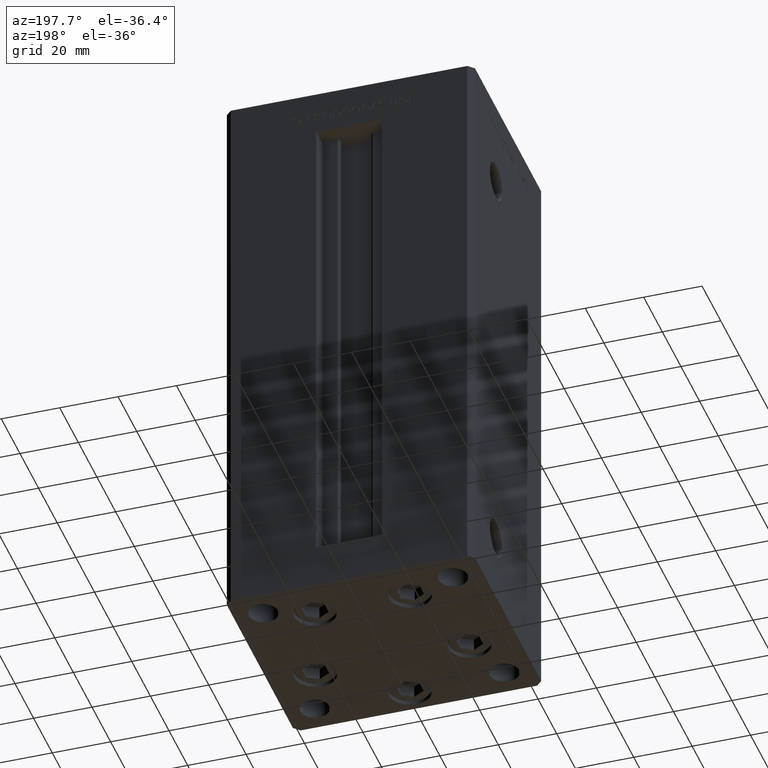
[diagram: clean part render]
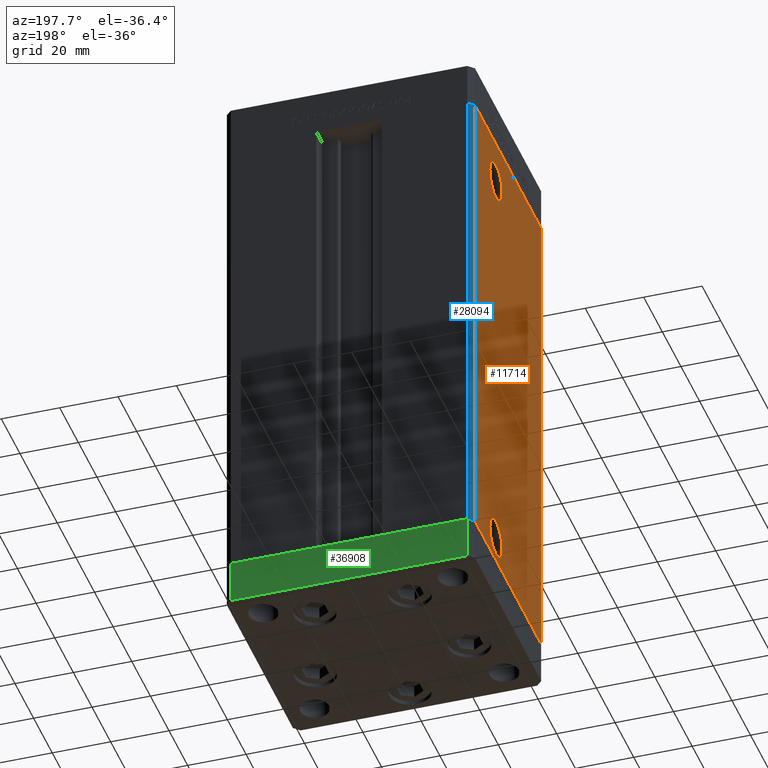
[diagram: same view with three faces highlighted in distinct colors, each labeled with its STEP entity id]
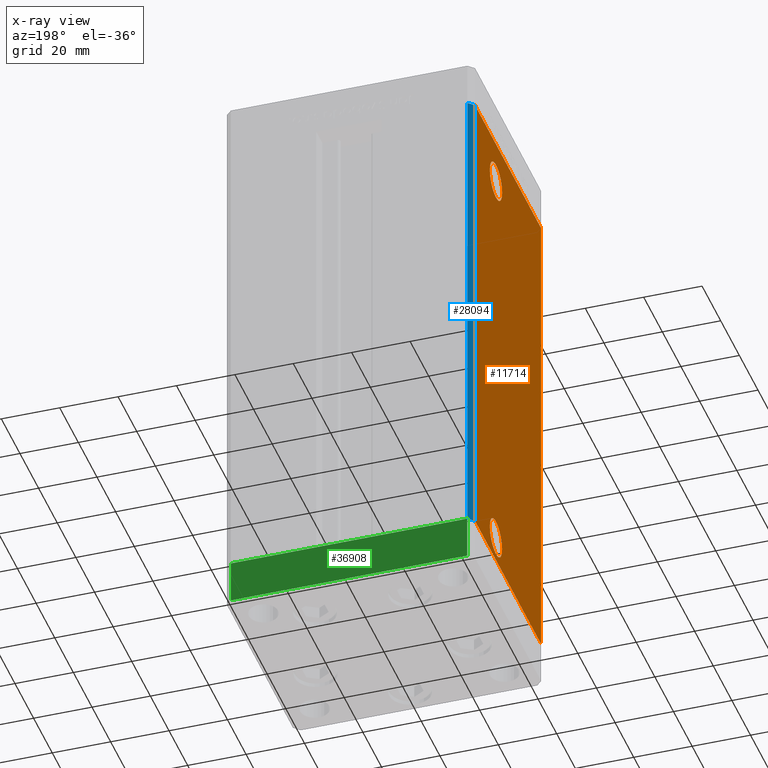
[diagram: x-ray of the same camera — body ghosted, the three highlighted faces saturated]
A machine part, auxiliary view with three faces highlighted in distinct colors.
The next image is the same camera in x-ray (body ghosted, the three faces saturated) — at least one of them is partly hidden behind the body in this view.
Their STEP definitions:

[orange] entity #11714 — the highlighted planar face has unit normal (1, 0, 0).
#1262 = CARTESIAN_POINT ( 'NONE',  ( -42.50000000000000711, 35.50000000000001421, 168.5000000000000000 ) ) ;
#1520 = CARTESIAN_POINT ( 'NONE',  ( -42.49999999999999289, 13.00000000000000000, 153.5000000000000284 ) ) ;
#2626 = ORIENTED_EDGE ( 'NONE', *, *, #6531, .F. ) ;
#3436 = CARTESIAN_POINT ( 'NONE',  ( -42.49999999999999289, 13.00000000000000000, 9.000000000000000000 ) ) ;
#3660 = VERTEX_POINT ( 'NONE', #8243 ) ;
#3820 = CARTESIAN_POINT ( 'NONE',  ( -42.50000000000000711, 35.50000000000001421, 168.5000000000000000 ) ) ;
#6531 = EDGE_CURVE ( 'NONE', #28517, #3660, #35390, .T. ) ;
#7419 = LINE ( 'NONE', #28234, #41096 ) ;
#7801 = VECTOR ( 'NONE', #38517, 1000.000000000000000 ) ;
#8243 = CARTESIAN_POINT ( 'NONE',  ( -42.49999999999999289, 19.58000000000000540, 9.000000000000000000 ) ) ;
#9853 = CARTESIAN_POINT ( 'NONE',  ( -42.49999999999999289, 19.58000000000001251, 153.5000000000000284 ) ) ;
#10021 = EDGE_LOOP ( 'NONE', ( #48513, #31859, #20258, #34384 ) ) ;
#11714 = ADVANCED_FACE ( 'NONE', ( #37368, #16799, #36582 ), #12842, .F. ) ;
#12741 = EDGE_LOOP ( 'NONE', ( #33614, #50224 ) ) ;
#12842 = PLANE ( 'NONE',  #34703 ) ;
#13340 = EDGE_CURVE ( 'NONE', #50776, #19986, #26025, .T. ) ;
#13658 = AXIS2_PLACEMENT_3D ( 'NONE', #1520, #41593, #33672 ) ;
#14179 = CARTESIAN_POINT ( 'NONE',  ( -42.49999999999999289, 13.00000000000000000, 153.5000000000000284 ) ) ;
#14529 = VECTOR ( 'NONE', #42394, 1000.000000000000000 ) ;
#14703 = DIRECTION ( 'NONE',  ( 0.000000000000000000, -1.000000000000000000, 0.000000000000000000 ) ) ;
#15812 = DIRECTION ( 'NONE',  ( 0.000000000000000000, -1.000000000000000000, 0.000000000000000000 ) ) ;
#16799 = FACE_BOUND ( 'NONE', #12741, .T. ) ;
#17331 = DIRECTION ( 'NONE',  ( 1.000000000000000000, 2.931927001650941360E-16, -0.000000000000000000 ) ) ;
#17372 = VERTEX_POINT ( 'NONE', #46942 ) ;
#17434 = CARTESIAN_POINT ( 'NONE',  ( -42.49999999999998579, -35.50000000000000711, 168.5000000000000000 ) ) ;
#17952 = VECTOR ( 'NONE', #19902, 1000.000000000000000 ) ;
#19567 = CIRCLE ( 'NONE', #13658, 6.580000000000015170 ) ;
#19897 = ORIENTED_EDGE ( 'NONE', *, *, #20869, .F. ) ;
#19902 = DIRECTION ( 'NONE',  ( -0.000000000000000000, -0.000000000000000000, -1.000000000000000000 ) ) ;
#19986 = VERTEX_POINT ( 'NONE', #48143 ) ;
#20215 = CARTESIAN_POINT ( 'NONE',  ( -42.49999999999999289, 13.00000000000000000, 9.000000000000000000 ) ) ;
#20258 = ORIENTED_EDGE ( 'NONE', *, *, #34941, .F. ) ;
#20749 = DIRECTION ( 'NONE',  ( -1.000000000000000000, -2.275047181608927644E-16, 0.000000000000000000 ) ) ;
#20869 = EDGE_CURVE ( 'NONE', #3660, #28517, #25655, .T. ) ;
#23457 = DIRECTION ( 'NONE',  ( -1.000000000000000000, -2.275047181608927644E-16, 0.000000000000000000 ) ) ;
#23496 = DIRECTION ( 'NONE',  ( 2.931927001650941360E-16, -1.000000000000000000, 0.000000000000000000 ) ) ;
#23951 = AXIS2_PLACEMENT_3D ( 'NONE', #3436, #23457, #15812 ) ;
#24218 = VERTEX_POINT ( 'NONE', #3820 ) ;
#25013 = CARTESIAN_POINT ( 'NONE',  ( -42.49999999999999289, 6.419999999999983942, 153.5000000000000284 ) ) ;
#25655 = CIRCLE ( 'NONE', #23951, 6.580000000000003624 ) ;
#26025 = LINE ( 'NONE', #30253, #14529 ) ;
#28234 = CARTESIAN_POINT ( 'NONE',  ( -42.50000000000000711, 35.50000000000001421, 168.5000000000000000 ) ) ;
#28517 = VERTEX_POINT ( 'NONE', #38082 ) ;
#29196 = DIRECTION ( 'NONE',  ( -2.931927001650941360E-16, 1.000000000000000000, 0.000000000000000000 ) ) ;
#30253 = CARTESIAN_POINT ( 'NONE',  ( -42.50000000000000711, 35.50000000000001421, 0.000000000000000000 ) ) ;
#31614 = CARTESIAN_POINT ( 'NONE',  ( -42.50000000000000711, 35.50000000000001421, 0.000000000000000000 ) ) ;
#31859 = ORIENTED_EDGE ( 'NONE', *, *, #47849, .F. ) ;
#33614 = ORIENTED_EDGE ( 'NONE', *, *, #46832, .F. ) ;
#33672 = DIRECTION ( 'NONE',  ( 0.000000000000000000, -1.000000000000000000, 0.000000000000000000 ) ) ;
#34299 = LINE ( 'NONE', #17434, #7801 ) ;
#34384 = ORIENTED_EDGE ( 'NONE', *, *, #45492, .T. ) ;
#34703 = AXIS2_PLACEMENT_3D ( 'NONE', #1262, #17331, #29196 ) ;
#34941 = EDGE_CURVE ( 'NONE', #24218, #17372, #7419, .T. ) ;
#35298 = EDGE_CURVE ( 'NONE', #48420, #48002, #38569, .T. ) ;
#35390 = CIRCLE ( 'NONE', #45478, 6.580000000000003624 ) ;
#36582 = FACE_OUTER_BOUND ( 'NONE', #10021, .T. ) ;
#36915 = AXIS2_PLACEMENT_3D ( 'NONE', #14179, #46368, #14703 ) ;
#37368 = FACE_BOUND ( 'NONE', #42462, .T. ) ;
#38082 = CARTESIAN_POINT ( 'NONE',  ( -42.49999999999999289, 6.419999999999996376, 9.000000000000000000 ) ) ;
#38517 = DIRECTION ( 'NONE',  ( -0.000000000000000000, -0.000000000000000000, -1.000000000000000000 ) ) ;
#38569 = CIRCLE ( 'NONE', #36915, 6.580000000000015170 ) ;
#39946 = LINE ( 'NONE', #47876, #17952 ) ;
#41096 = VECTOR ( 'NONE', #23496, 1000.000000000000000 ) ;
#41593 = DIRECTION ( 'NONE',  ( -1.000000000000000000, -2.275047181608927644E-16, 0.000000000000000000 ) ) ;
#42394 = DIRECTION ( 'NONE',  ( 2.931927001650941360E-16, -1.000000000000000000, 0.000000000000000000 ) ) ;
#42462 = EDGE_LOOP ( 'NONE', ( #2626, #19897 ) ) ;
#45478 = AXIS2_PLACEMENT_3D ( 'NONE', #20215, #20749, #49247 ) ;
#45492 = EDGE_CURVE ( 'NONE', #24218, #50776, #39946, .T. ) ;
#46368 = DIRECTION ( 'NONE',  ( -1.000000000000000000, -2.275047181608927644E-16, 0.000000000000000000 ) ) ;
#46832 = EDGE_CURVE ( 'NONE', #48002, #48420, #19567, .T. ) ;
#46942 = CARTESIAN_POINT ( 'NONE',  ( -42.49999999999998579, -35.50000000000000711, 168.5000000000000000 ) ) ;
#47849 = EDGE_CURVE ( 'NONE', #17372, #19986, #34299, .T. ) ;
#47876 = CARTESIAN_POINT ( 'NONE',  ( -42.50000000000000711, 35.50000000000001421, 168.5000000000000000 ) ) ;
#48002 = VERTEX_POINT ( 'NONE', #25013 ) ;
#48143 = CARTESIAN_POINT ( 'NONE',  ( -42.49999999999998579, -35.50000000000000711, 0.000000000000000000 ) ) ;
#48420 = VERTEX_POINT ( 'NONE', #9853 ) ;
#48513 = ORIENTED_EDGE ( 'NONE', *, *, #13340, .T. ) ;
#49247 = DIRECTION ( 'NONE',  ( 0.000000000000000000, -1.000000000000000000, 0.000000000000000000 ) ) ;
#50224 = ORIENTED_EDGE ( 'NONE', *, *, #35298, .F. ) ;
#50776 = VERTEX_POINT ( 'NONE', #31614 ) ;

[blue] entity #28094 — the highlighted planar face has unit normal (0.7071, -0.7071, 0).
#838 = EDGE_CURVE ( 'NONE', #3870, #24218, #4238, .T. ) ;
#3820 = CARTESIAN_POINT ( 'NONE',  ( -42.50000000000000711, 35.50000000000001421, 168.5000000000000000 ) ) ;
#3870 = VERTEX_POINT ( 'NONE', #20053 ) ;
#4238 = LINE ( 'NONE', #11624, #31016 ) ;
#6558 = LINE ( 'NONE', #22647, #43884 ) ;
#8673 = EDGE_CURVE ( 'NONE', #3870, #32534, #49068, .T. ) ;
#8785 = EDGE_CURVE ( 'NONE', #32534, #50776, #6558, .T. ) ;
#11296 = DIRECTION ( 'NONE',  ( 0.7071067811865451302, -0.7071067811865500152, 0.000000000000000000 ) ) ;
#11624 = CARTESIAN_POINT ( 'NONE',  ( -40.50000000000000000, 37.50000000000000711, 168.5000000000000000 ) ) ;
#12488 = ORIENTED_EDGE ( 'NONE', *, *, #8785, .T. ) ;
#12677 = VECTOR ( 'NONE', #42172, 1000.000000000000000 ) ;
#15023 = CARTESIAN_POINT ( 'NONE',  ( -40.50000000000000000, 37.50000000000000711, 0.000000000000000000 ) ) ;
#17952 = VECTOR ( 'NONE', #19902, 1000.000000000000000 ) ;
#19902 = DIRECTION ( 'NONE',  ( -0.000000000000000000, -0.000000000000000000, -1.000000000000000000 ) ) ;
#20053 = CARTESIAN_POINT ( 'NONE',  ( -40.50000000000000000, 37.50000000000000711, 168.5000000000000000 ) ) ;
#22647 = CARTESIAN_POINT ( 'NONE',  ( -40.50000000000000000, 37.50000000000000711, 0.000000000000000000 ) ) ;
#23659 = PLANE ( 'NONE',  #39225 ) ;
#24218 = VERTEX_POINT ( 'NONE', #3820 ) ;
#26074 = CARTESIAN_POINT ( 'NONE',  ( -40.50000000000000000, 37.50000000000000711, 168.5000000000000000 ) ) ;
#28094 = ADVANCED_FACE ( 'NONE', ( #47181 ), #23659, .F. ) ;
#30760 = ORIENTED_EDGE ( 'NONE', *, *, #838, .F. ) ;
#31016 = VECTOR ( 'NONE', #38611, 1000.000000000000114 ) ;
#31593 = CARTESIAN_POINT ( 'NONE',  ( -40.50000000000000000, 37.50000000000000711, 168.5000000000000000 ) ) ;
#31614 = CARTESIAN_POINT ( 'NONE',  ( -42.50000000000000711, 35.50000000000001421, 0.000000000000000000 ) ) ;
#32534 = VERTEX_POINT ( 'NONE', #15023 ) ;
#38611 = DIRECTION ( 'NONE',  ( -0.7071067811865500152, -0.7071067811865451302, 0.000000000000000000 ) ) ;
#39225 = AXIS2_PLACEMENT_3D ( 'NONE', #31593, #11296, #47443 ) ;
#39266 = DIRECTION ( 'NONE',  ( -0.7071067811865500152, -0.7071067811865451302, 0.000000000000000000 ) ) ;
#39946 = LINE ( 'NONE', #47876, #17952 ) ;
#42172 = DIRECTION ( 'NONE',  ( -0.000000000000000000, -0.000000000000000000, -1.000000000000000000 ) ) ;
#43884 = VECTOR ( 'NONE', #39266, 1000.000000000000114 ) ;
#45492 = EDGE_CURVE ( 'NONE', #24218, #50776, #39946, .T. ) ;
#47181 = FACE_OUTER_BOUND ( 'NONE', #49154, .T. ) ;
#47443 = DIRECTION ( 'NONE',  ( 0.7071067811865500152, 0.7071067811865451302, 0.000000000000000000 ) ) ;
#47876 = CARTESIAN_POINT ( 'NONE',  ( -42.50000000000000711, 35.50000000000001421, 168.5000000000000000 ) ) ;
#49005 = ORIENTED_EDGE ( 'NONE', *, *, #45492, .F. ) ;
#49068 = LINE ( 'NONE', #26074, #12677 ) ;
#49154 = EDGE_LOOP ( 'NONE', ( #12488, #49005, #30760, #49546 ) ) ;
#49546 = ORIENTED_EDGE ( 'NONE', *, *, #8673, .T. ) ;
#50776 = VERTEX_POINT ( 'NONE', #31614 ) ;

[green] entity #36908 — the highlighted planar face has unit normal (0, 1, 0).
#286 = EDGE_CURVE ( 'NONE', #32165, #18664, #42970, .T. ) ;
#596 = DIRECTION ( 'NONE',  ( -1.000000000000000000, -3.426614273534436165E-16, 0.000000000000000000 ) ) ;
#864 = VERTEX_POINT ( 'NONE', #6433 ) ;
#1897 = EDGE_CURVE ( 'NONE', #37669, #864, #48330, .T. ) ;
#6433 = CARTESIAN_POINT ( 'NONE',  ( -40.50000000000000711, 37.49999999999997868, -15.00000000000000000 ) ) ;
#6644 = CARTESIAN_POINT ( 'NONE',  ( 40.49999999999991473, 37.50000000000000711, 0.000000000000000000 ) ) ;
#6903 = DIRECTION ( 'NONE',  ( -3.426614273534436165E-16, 1.000000000000000000, 0.000000000000000000 ) ) ;
#7914 = CARTESIAN_POINT ( 'NONE',  ( -40.50000000000000711, 37.49999999999997868, -15.00000000000000000 ) ) ;
#10822 = VECTOR ( 'NONE', #22908, 1000.000000000000000 ) ;
#11040 = ORIENTED_EDGE ( 'NONE', *, *, #19171, .F. ) ;
#12763 = ORIENTED_EDGE ( 'NONE', *, *, #23251, .T. ) ;
#15495 = VECTOR ( 'NONE', #48799, 1000.000000000000000 ) ;
#15570 = CARTESIAN_POINT ( 'NONE',  ( -40.50000000000000711, 37.49999999999997868, 0.000000000000000000 ) ) ;
#17486 = CARTESIAN_POINT ( 'NONE',  ( 40.49999999999991473, 37.50000000000000711, -15.00000000000000000 ) ) ;
#18622 = DIRECTION ( 'NONE',  ( 0.000000000000000000, 0.000000000000000000, 1.000000000000000000 ) ) ;
#18664 = VERTEX_POINT ( 'NONE', #15570 ) ;
#19171 = EDGE_CURVE ( 'NONE', #37669, #32165, #51327, .T. ) ;
#19845 = CARTESIAN_POINT ( 'NONE',  ( 40.49999999999991473, 37.50000000000000711, -15.00000000000000000 ) ) ;
#21778 = AXIS2_PLACEMENT_3D ( 'NONE', #51231, #6903, #22476 ) ;
#22210 = PLANE ( 'NONE',  #21778 ) ;
#22476 = DIRECTION ( 'NONE',  ( -1.000000000000000000, -3.426614273534436165E-16, 0.000000000000000000 ) ) ;
#22908 = DIRECTION ( 'NONE',  ( -1.000000000000000000, -3.426614273534436165E-16, 0.000000000000000000 ) ) ;
#23250 = FACE_OUTER_BOUND ( 'NONE', #31754, .T. ) ;
#23251 = EDGE_CURVE ( 'NONE', #864, #18664, #50954, .T. ) ;
#23343 = CARTESIAN_POINT ( 'NONE',  ( 40.49999999999991473, 37.50000000000000711, -15.00000000000000000 ) ) ;
#23668 = CARTESIAN_POINT ( 'NONE',  ( 40.49999999999991473, 37.50000000000000711, 0.000000000000000000 ) ) ;
#25242 = ORIENTED_EDGE ( 'NONE', *, *, #1897, .T. ) ;
#31754 = EDGE_LOOP ( 'NONE', ( #42985, #11040, #25242, #12763 ) ) ;
#32165 = VERTEX_POINT ( 'NONE', #6644 ) ;
#36908 = ADVANCED_FACE ( 'NONE', ( #23250 ), #22210, .T. ) ;
#37669 = VERTEX_POINT ( 'NONE', #17486 ) ;
#42109 = VECTOR ( 'NONE', #596, 1000.000000000000000 ) ;
#42970 = LINE ( 'NONE', #23668, #10822 ) ;
#42985 = ORIENTED_EDGE ( 'NONE', *, *, #286, .F. ) ;
#44988 = VECTOR ( 'NONE', #18622, 1000.000000000000000 ) ;
#48330 = LINE ( 'NONE', #19845, #42109 ) ;
#48799 = DIRECTION ( 'NONE',  ( 0.000000000000000000, 0.000000000000000000, 1.000000000000000000 ) ) ;
#50954 = LINE ( 'NONE', #7914, #15495 ) ;
#51231 = CARTESIAN_POINT ( 'NONE',  ( 40.49999999999991473, 37.50000000000000711, -15.00000000000000000 ) ) ;
#51327 = LINE ( 'NONE', #23343, #44988 ) ;